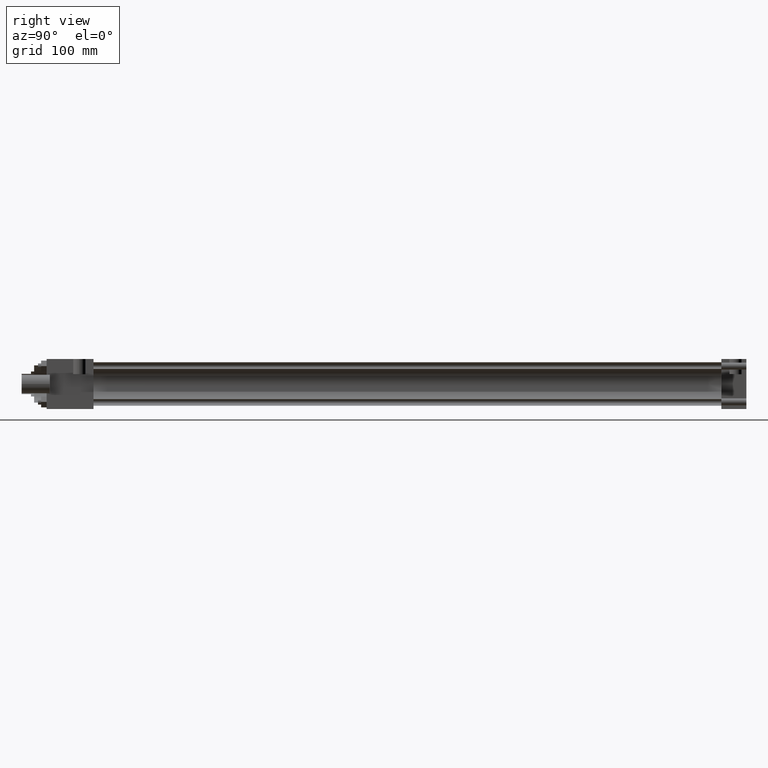
[diagram: clean part render]
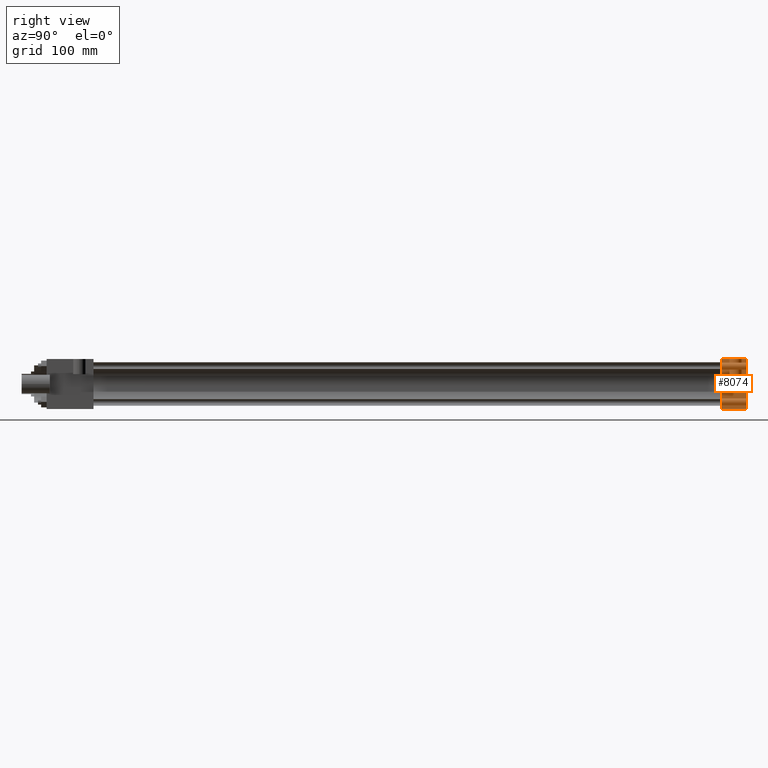
[diagram: same view with one face highlighted and labeled with its STEP entity id]
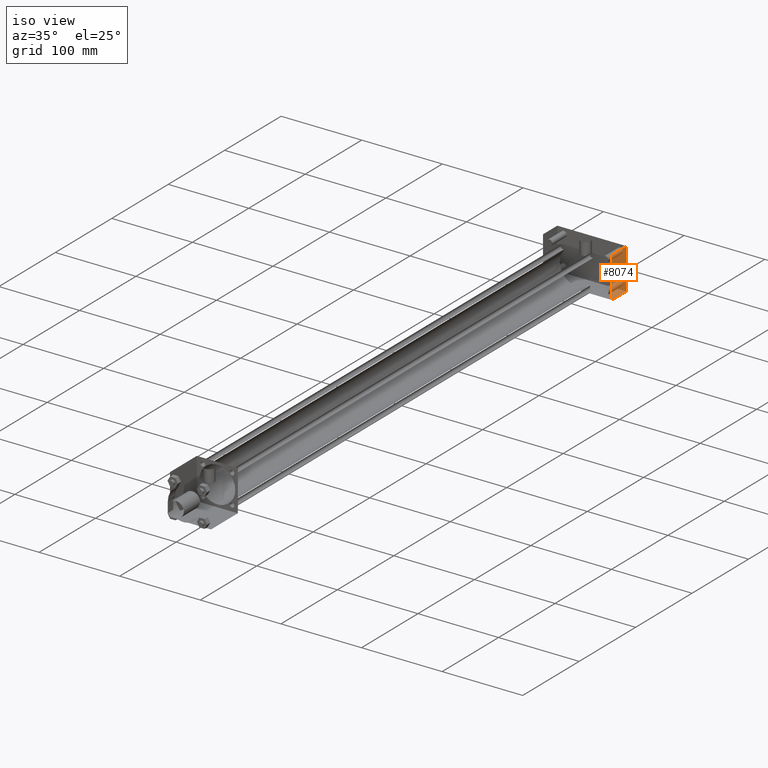
[diagram: same view with one face highlighted and labeled with its STEP entity id]
A machine part, right view. The second image highlights one B-rep face of the part: STEP entity #8074.
A second angle (iso view) of the same face is appended — the face is thin or edge-on in the first view.
In plain terms, the highlighted planar face has unit normal (1, 0, 0).
Its self-contained STEP definition (entity closure, byte-faithful):
#3448=VERTEX_POINT('',#3450);
#3450=CARTESIAN_POINT('',(4.286250000E+001,7.112000000E+002,-2.540000000E+001));
#3451=EDGE_CURVE('',#3448,#3456,#3452,.T.);
#3452=LINE('',#3453,#3454);
#3453=CARTESIAN_POINT('',(4.286250000E+001,7.112000000E+002,-2.540000000E+001));
#3454=VECTOR('',#3455,1.0E+000);
#3455=DIRECTION('',(0.0E+000,0.0E+000,1.0E+000));
#3456=VERTEX_POINT('',#3457);
#3457=CARTESIAN_POINT('',(4.286250000E+001,7.112000000E+002,2.540000000E+001));
#3673=FACE_OUTER_BOUND('',#3675,.T.);
#3674=FACE_BOUND('',#3676,.T.);
#3675=EDGE_LOOP('',(#3677,#3678,#3679,#3680));
#3676=EDGE_LOOP('',(#3700));
#3677=ORIENTED_EDGE('',*,*,#3681,.T.);
#3678=ORIENTED_EDGE('',*,*,#3451,.F.);
#3679=ORIENTED_EDGE('',*,*,#3688,.F.);
#3680=ORIENTED_EDGE('',*,*,#3695,.T.);
#3681=EDGE_CURVE('',#3686,#3456,#3682,.T.);
#3682=LINE('',#3683,#3684);
#3683=CARTESIAN_POINT('',(4.286250000E+001,7.366000000E+002,2.540000000E+001));
#3684=VECTOR('',#3685,1.0E+000);
#3685=DIRECTION('',(0.0E+000,-1.0E+000,0.0E+000));
#3686=VERTEX_POINT('',#3687);
#3687=CARTESIAN_POINT('',(4.286250000E+001,7.366000000E+002,2.540000000E+001));
#3688=EDGE_CURVE('',#3693,#3448,#3689,.T.);
#3689=LINE('',#3690,#3691);
#3690=CARTESIAN_POINT('',(4.286250000E+001,7.366000000E+002,-2.540000000E+001));
#3691=VECTOR('',#3692,1.0E+000);
#3692=DIRECTION('',(0.0E+000,-1.0E+000,0.0E+000));
#3693=VERTEX_POINT('',#3694);
#3694=CARTESIAN_POINT('',(4.286250000E+001,7.366000000E+002,-2.540000000E+001));
#3695=EDGE_CURVE('',#3693,#3686,#3696,.T.);
#3696=LINE('',#3697,#3698);
#3697=CARTESIAN_POINT('',(4.286250000E+001,7.366000000E+002,-2.540000000E+001));
#3698=VECTOR('',#3699,1.0E+000);
#3699=DIRECTION('',(0.0E+000,0.0E+000,1.0E+000));
#3700=ORIENTED_EDGE('',*,*,#3701,.T.);
#3701=EDGE_CURVE('',#3707,#3707,#3702,.T.);
#3702=CIRCLE('',#3703,2.778125000E+000);
#3703=AXIS2_PLACEMENT_3D('',#3704,#3705,#3706);
#3704=CARTESIAN_POINT('',(4.286250000E+001,7.254875000E+002,0.000000000E+000));
#3705=DIRECTION('',(-1.0E+000,0.0E+000,0.0E+000));
#3706=DIRECTION('',(0.0E+000,1.0E+000,0.0E+000));
#3707=VERTEX_POINT('',#3708);
#3708=CARTESIAN_POINT('',(4.286250000E+001,7.282656250E+002,0.000000000E+000));
#3709=PLANE('',#3710);
#3710=AXIS2_PLACEMENT_3D('',#3711,#3712,#3713);
#3711=CARTESIAN_POINT('',(4.286250000E+001,7.366000000E+002,-2.540000000E+001));
#3712=DIRECTION('',(1.0E+000,0.0E+000,0.0E+000));
#3713=DIRECTION('',(0.0E+000,0.0E+000,-1.0E+000));
#8074=ADVANCED_FACE('',(#3673,#3674),#3709,.T.);